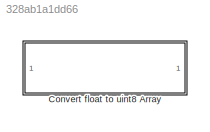
MODEL slx_328ab1a1dd66
KIND library
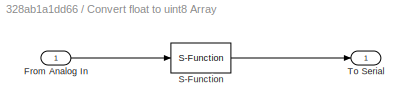
BLOCK [SubSystem] Convert float to uint8 Array
  FunctionWithSeparateData = off
  MaskHideContents = off
  MinAlgLoopOccurrences = off
  Opaque = off
  Ports = [1, 1]
  PropExecContextOutsideSubsystem = off
  RTWSystemCode = Auto
  RequestExecContextInheritance = off
BLOCK [Inport] Convert float to uint8 Array/From Analog In
  IconDisplay = Port number
  OutDataTypeStr = single
BLOCK [S-Function] Convert float to uint8 Array/S-Function
  EnableBusSupport = off
  FunctionName = s2b
  Ports = [1, 1]
BLOCK [Outport] Convert float to uint8 Array/To Serial
  IconDisplay = Port number
  OutDataTypeStr = uint8
LINE Convert float to uint8 Array/From Analog In:1 -> Convert float to uint8 Array/S-Function:1
LINE Convert float to uint8 Array/S-Function:1 -> Convert float to uint8 Array/To Serial:1
